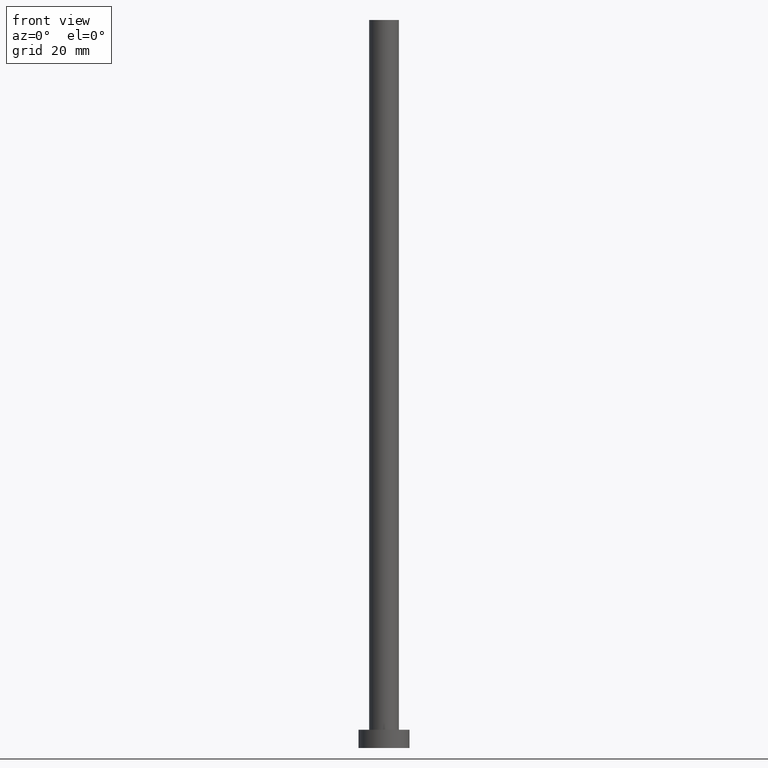
[diagram: clean part render]
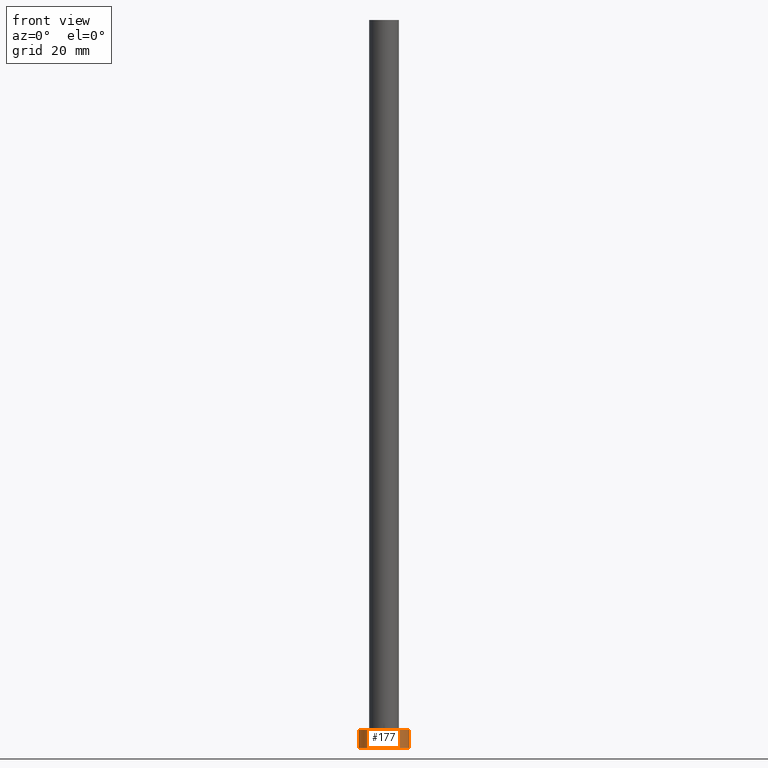
[diagram: same view with one face highlighted and labeled with its STEP entity id]
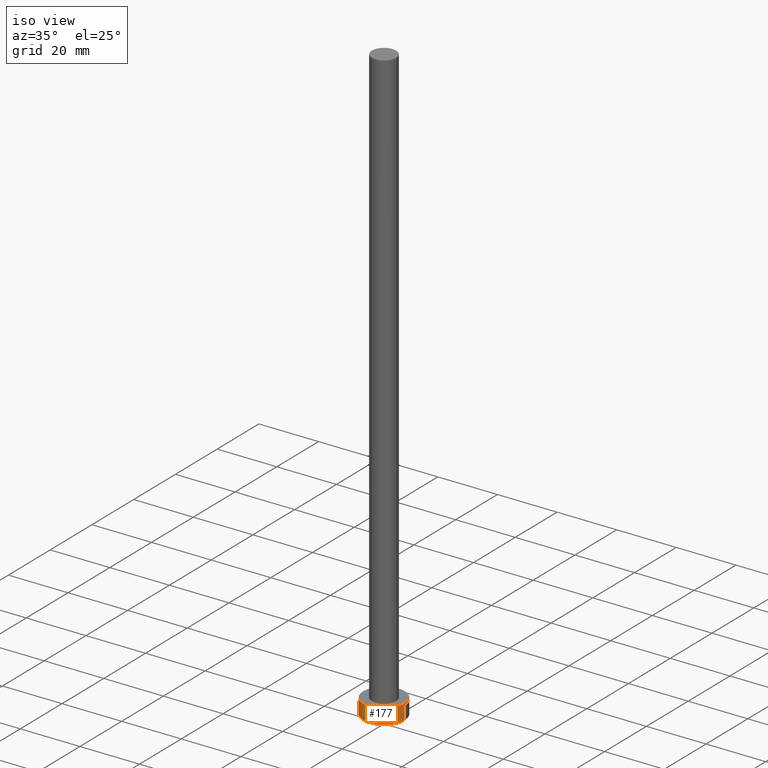
[diagram: same view with one face highlighted and labeled with its STEP entity id]
A machine part, front view. The second image highlights one B-rep face of the part: STEP entity #177.
A second angle (iso view) of the same face is appended — the face is thin or edge-on in the first view.
In plain terms, the highlighted cylindrical surface (edge-blend (fillet) strip) has radius 7 mm, axis along (-0, -0, -1).
Its self-contained STEP definition (entity closure, byte-faithful):
#8 = LINE ( 'NONE', #55, #58 ) ;
#9 = CARTESIAN_POINT ( 'NONE',  ( 7.000000000000000000, 8.572527594031473190E-16, 5.000000000000000000 ) ) ;
#22 = DIRECTION ( 'NONE',  ( 1.000000000000000000, 0.000000000000000000, 0.000000000000000000 ) ) ;
#35 = EDGE_CURVE ( 'NONE', #170, #93, #204, .T. ) ;
#37 = EDGE_CURVE ( 'NONE', #170, #211, #111, .T. ) ;
#46 = DIRECTION ( 'NONE',  ( -1.000000000000000000, 0.000000000000000000, 0.000000000000000000 ) ) ;
#48 = DIRECTION ( 'NONE',  ( 1.000000000000000000, 0.000000000000000000, 0.000000000000000000 ) ) ;
#55 = CARTESIAN_POINT ( 'NONE',  ( 7.000000000000000000, 8.572527594031473190E-16, 5.000000000000000000 ) ) ;
#56 = AXIS2_PLACEMENT_3D ( 'NONE', #98, #155, #22 ) ;
#58 = VECTOR ( 'NONE', #135, 1000.000000000000000 ) ;
#61 = FACE_OUTER_BOUND ( 'NONE', #253, .T. ) ;
#62 = CYLINDRICAL_SURFACE ( 'NONE', #130, 7.000000000000000000 ) ;
#73 = CARTESIAN_POINT ( 'NONE',  ( -7.000000000000000000, 0.000000000000000000, 5.000000000000000000 ) ) ;
#74 = EDGE_CURVE ( 'NONE', #211, #209, #166, .T. ) ;
#79 = CARTESIAN_POINT ( 'NONE',  ( -7.000000000000000000, 0.000000000000000000, 0.000000000000000000 ) ) ;
#86 = ORIENTED_EDGE ( 'NONE', *, *, #74, .T. ) ;
#89 = VECTOR ( 'NONE', #131, 1000.000000000000000 ) ;
#93 = VERTEX_POINT ( 'NONE', #9 ) ;
#98 = CARTESIAN_POINT ( 'NONE',  ( 0.000000000000000000, 0.000000000000000000, 5.000000000000000000 ) ) ;
#111 = LINE ( 'NONE', #122, #89 ) ;
#122 = CARTESIAN_POINT ( 'NONE',  ( -7.000000000000000000, 0.000000000000000000, 5.000000000000000000 ) ) ;
#130 = AXIS2_PLACEMENT_3D ( 'NONE', #142, #220, #46 ) ;
#131 = DIRECTION ( 'NONE',  ( -0.000000000000000000, -0.000000000000000000, -1.000000000000000000 ) ) ;
#135 = DIRECTION ( 'NONE',  ( -0.000000000000000000, -0.000000000000000000, -1.000000000000000000 ) ) ;
#142 = CARTESIAN_POINT ( 'NONE',  ( 0.000000000000000000, 0.000000000000000000, 5.000000000000000000 ) ) ;
#155 = DIRECTION ( 'NONE',  ( 0.000000000000000000, 0.000000000000000000, 1.000000000000000000 ) ) ;
#160 = ORIENTED_EDGE ( 'NONE', *, *, #37, .T. ) ;
#166 = CIRCLE ( 'NONE', #228, 7.000000000000000000 ) ;
#170 = VERTEX_POINT ( 'NONE', #73 ) ;
#171 = EDGE_CURVE ( 'NONE', #93, #209, #8, .T. ) ;
#177 = ADVANCED_FACE ( 'NONE', ( #61 ), #62, .T. ) ;
#191 = ORIENTED_EDGE ( 'NONE', *, *, #35, .F. ) ;
#194 = CARTESIAN_POINT ( 'NONE',  ( 0.000000000000000000, 0.000000000000000000, 0.000000000000000000 ) ) ;
#195 = ORIENTED_EDGE ( 'NONE', *, *, #171, .F. ) ;
#200 = CARTESIAN_POINT ( 'NONE',  ( 7.000000000000000000, 8.572527594031473190E-16, 0.000000000000000000 ) ) ;
#204 = CIRCLE ( 'NONE', #56, 7.000000000000000000 ) ;
#209 = VERTEX_POINT ( 'NONE', #200 ) ;
#211 = VERTEX_POINT ( 'NONE', #79 ) ;
#220 = DIRECTION ( 'NONE',  ( -0.000000000000000000, -0.000000000000000000, -1.000000000000000000 ) ) ;
#221 = DIRECTION ( 'NONE',  ( 0.000000000000000000, 0.000000000000000000, 1.000000000000000000 ) ) ;
#228 = AXIS2_PLACEMENT_3D ( 'NONE', #194, #221, #48 ) ;
#253 = EDGE_LOOP ( 'NONE', ( #195, #191, #160, #86 ) ) ;